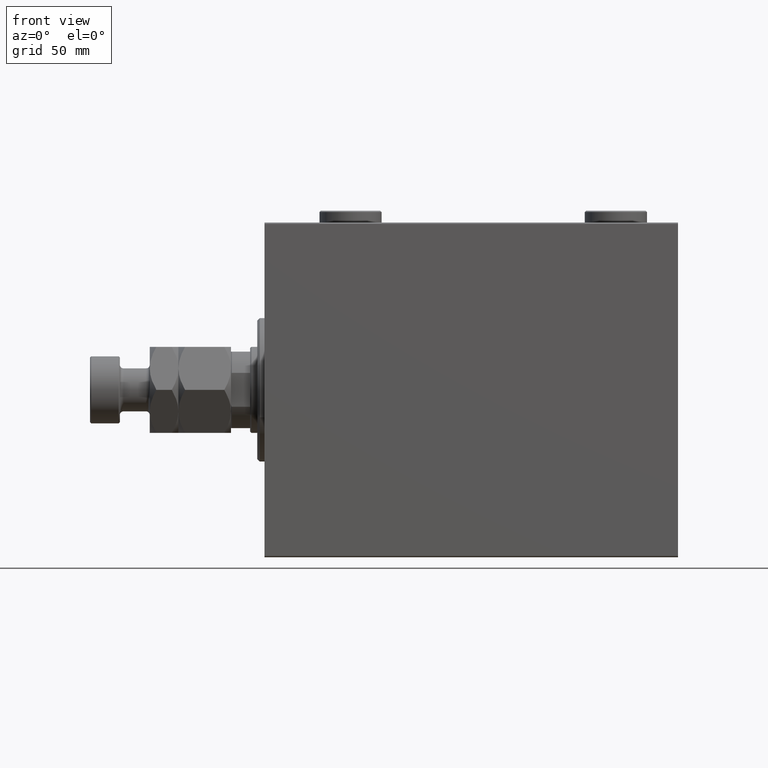
[diagram: clean part render]
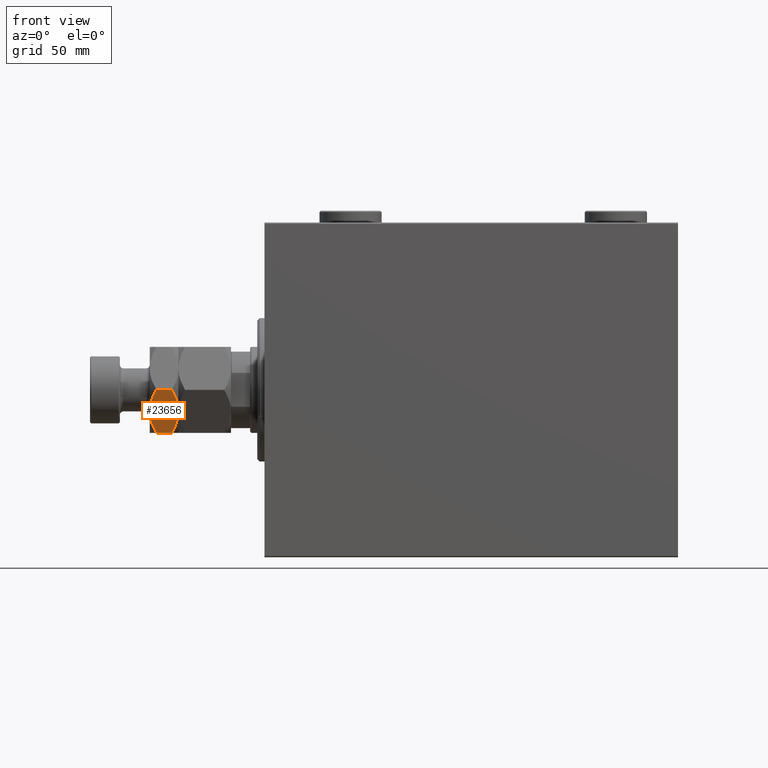
[diagram: same view with one face highlighted and labeled with its STEP entity id]
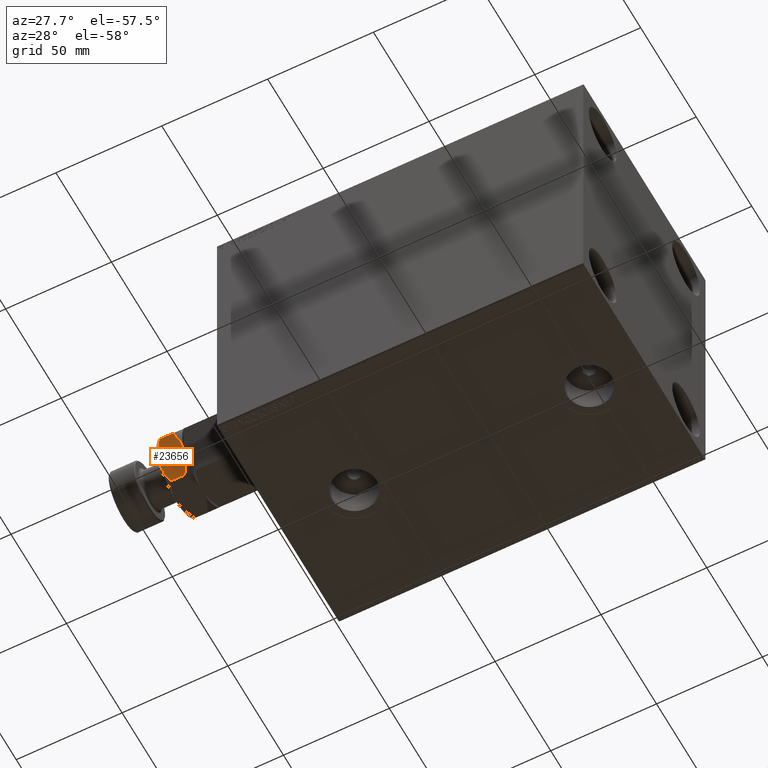
[diagram: same view with one face highlighted and labeled with its STEP entity id]
A machine part, front view. The second image highlights one B-rep face of the part: STEP entity #23656.
A second angle (auxiliary view) of the same face is appended — the face is thin or edge-on in the first view.
In plain terms, the highlighted planar face has unit normal (0, 0.866, 0.5).
Its self-contained STEP definition (entity closure, byte-faithful):
#1110 = EDGE_CURVE ( 'NONE', #1122, #21046, #31435, .T. ) ;
#1122 = VERTEX_POINT ( 'NONE', #23806 ) ;
#1219 = CARTESIAN_POINT ( 'NONE',  ( -8.605874323383764235, -15.81600583360882162, 22.00000000000000000 ) ) ;
#1338 = CARTESIAN_POINT ( 'NONE',  ( -12.10430252359947723, -13.79618737047370125, 22.27639590712157869 ) ) ;
#1570 = CARTESIAN_POINT ( 'NONE',  ( -17.99999999999999645, -10.39230484541326227, 24.78460969082651744 ) ) ;
#1721 = CARTESIAN_POINT ( 'NONE',  ( -17.99999999999999645, -10.39230484541326227, 31.21539030917348612 ) ) ;
#2059 = ORIENTED_EDGE ( 'NONE', *, *, #1110, .T. ) ;
#2715 = ORIENTED_EDGE ( 'NONE', *, *, #12549, .F. ) ;
#4102 = PLANE ( 'NONE',  #26502 ) ;
#4337 = DIRECTION ( 'NONE',  ( 0.5000000000000001110, 0.8660254037844385966, -0.000000000000000000 ) ) ;
#4357 = CARTESIAN_POINT ( 'NONE',  ( -12.14199022028319952, -13.77442836864821629, 33.65943689774473313 ) ) ;
#4550 = CARTESIAN_POINT ( 'NONE',  ( -5.097327296964719423, -17.84166640377631552, 22.53708555582900530 ) ) ;
#4561 = B_SPLINE_CURVE_WITH_KNOTS ( 'NONE', 3,
 ( #1721, #30286, #44096, #11969, #4357, #26461, #33387, #44782, #40984, #26238 ),
 .UNSPECIFIED., .F., .F.,
 ( 4, 2, 2, 2, 4 ),
 ( 2.544307986796311447E-07, 0.005386537354063073400, 0.008079678815695271604, 0.009426249546511368538, 0.01077282027732746547 ),
 .UNSPECIFIED. ) ;
#4698 = EDGE_CURVE ( 'NONE', #1122, #21920, #4561, .T. ) ;
#4789 = CARTESIAN_POINT ( 'NONE',  ( -5.858009779716796039, -17.40248616759157230, 22.34056310225527398 ) ) ;
#5495 = B_SPLINE_CURVE_WITH_KNOTS ( 'NONE', 3,
 ( #40604, #26097, #1338, #12525, #8253, #1570 ),
 .UNSPECIFIED., .F., .F.,
 ( 4, 2, 4 ),
 ( 0.01077282027732746894, 0.01612137750481873466, 0.02146993473231000038 ),
 .UNSPECIFIED. ) ;
#6068 = VECTOR ( 'NONE', #34746, 1000.000000000000000 ) ;
#8253 = CARTESIAN_POINT ( 'NONE',  ( -16.59030399953600821, -11.20619321075668218, 23.97072132548304779 ) ) ;
#9064 = CARTESIAN_POINT ( 'NONE',  ( -2.854601888853809832, -19.13650452186756823, 23.27738307788987271 ) ) ;
#10321 = CARTESIAN_POINT ( 'NONE',  ( -5.895697476400520110, -17.38072716576608912, 33.72360409287841065 ) ) ;
#11969 = CARTESIAN_POINT ( 'NONE',  ( -12.90267270303527525, -13.33524813246346952, 33.46291444417099115 ) ) ;
#12167 = CARTESIAN_POINT ( 'NONE',  ( -8.999999999999994671, -15.58845726811989252, 22.00000000000000000 ) ) ;
#12525 = CARTESIAN_POINT ( 'NONE',  ( -15.13928418966203004, -12.04393988858690179, 23.27257470150423302 ) ) ;
#12549 = EDGE_CURVE ( 'NONE', #25114, #42149, #44889, .T. ) ;
#15296 = DIRECTION ( 'NONE',  ( -0.8660254037844385966, 0.5000000000000001110, 0.000000000000000000 ) ) ;
#15321 = B_SPLINE_CURVE_WITH_KNOTS ( 'NONE', 3,
 ( #20078, #20554, #10321, #24103, #24821, #43583 ),
 .UNSPECIFIED., .F., .F.,
 ( 4, 2, 4 ),
 ( 0.01077282027732746547, 0.01612137750481873466, 0.02146993473231000385 ),
 .UNSPECIFIED. ) ;
#16099 = DIRECTION ( 'NONE',  ( -0.000000000000000000, -0.000000000000000000, -1.000000000000000000 ) ) ;
#17577 = CARTESIAN_POINT ( 'NONE',  ( -8.999999999999994671, -15.58845726811989252, 22.00000000000000000 ) ) ;
#17665 = ORIENTED_EDGE ( 'NONE', *, *, #46435, .F. ) ;
#18629 = CARTESIAN_POINT ( 'NONE',  ( -17.99999999999999645, -10.39230484541326227, 34.00000000000000000 ) ) ;
#19076 = CARTESIAN_POINT ( 'NONE',  ( -7.415748492146451376, -16.50312530264320898, 22.08694689011815271 ) ) ;
#19311 = CARTESIAN_POINT ( 'NONE',  ( -7.023280245922041587, -16.72971695024925509, 22.13872259909857831 ) ) ;
#20078 = CARTESIAN_POINT ( 'NONE',  ( -9.000000000000000000, -15.58845726811989074, 34.00000000000000000 ) ) ;
#20554 = CARTESIAN_POINT ( 'NONE',  ( -7.434539168300459799, -16.49227650070744033, 34.00000000000000000 ) ) ;
#20930 = VECTOR ( 'NONE', #16099, 1000.000000000000000 ) ;
#21046 = VERTEX_POINT ( 'NONE', #26253 ) ;
#21900 = EDGE_CURVE ( 'NONE', #42149, #21046, #5495, .T. ) ;
#21920 = VERTEX_POINT ( 'NONE', #31074 ) ;
#22826 = ORIENTED_EDGE ( 'NONE', *, *, #21900, .F. ) ;
#23656 = ADVANCED_FACE ( 'NONE', ( #34062 ), #4102, .F. ) ;
#23806 = CARTESIAN_POINT ( 'NONE',  ( -17.99999999999999645, -10.39230484541326227, 31.21539030917348612 ) ) ;
#24103 = CARTESIAN_POINT ( 'NONE',  ( -2.860715810337961518, -19.13297464765288325, 32.72742529849575277 ) ) ;
#24821 = CARTESIAN_POINT ( 'NONE',  ( -1.409696000463986243, -19.97072132548310108, 32.02927867451695221 ) ) ;
#25114 = VERTEX_POINT ( 'NONE', #33948 ) ;
#25215 = VERTEX_POINT ( 'NONE', #46983 ) ;
#25712 = ORIENTED_EDGE ( 'NONE', *, *, #46123, .F. ) ;
#26097 = CARTESIAN_POINT ( 'NONE',  ( -10.56546083169953398, -14.68463803553235358, 22.00000000000000711 ) ) ;
#26238 = CARTESIAN_POINT ( 'NONE',  ( -9.000000000000000000, -15.58845726811989074, 34.00000000000000000 ) ) ;
#26253 = CARTESIAN_POINT ( 'NONE',  ( -17.99999999999999645, -10.39230484541326227, 24.78460969082651744 ) ) ;
#26420 = CARTESIAN_POINT ( 'NONE',  ( -8.209538469370123437, -16.04483044561310123, 22.01733285647410199 ) ) ;
#26461 = CARTESIAN_POINT ( 'NONE',  ( -10.97671975407794953, -14.44719758599053705, 33.86127740090142879 ) ) ;
#26502 = AXIS2_PLACEMENT_3D ( 'NONE', #18629, #4337, #15296 ) ;
#26891 = CARTESIAN_POINT ( 'NONE',  ( 1.116285825713513451E-15, -20.78460969082652809, 24.78460969082652454 ) ) ;
#29521 = ORIENTED_EDGE ( 'NONE', *, *, #4698, .F. ) ;
#30286 = CARTESIAN_POINT ( 'NONE',  ( -16.58866960374794530, -11.20713682960488100, 32.03022229336509952 ) ) ;
#31074 = CARTESIAN_POINT ( 'NONE',  ( -9.000000000000000000, -15.58845726811989074, 34.00000000000000000 ) ) ;
#31435 = LINE ( 'NONE', #45927, #6068 ) ;
#33387 = CARTESIAN_POINT ( 'NONE',  ( -10.58425150785354418, -14.67378923359658138, 33.91305310988184374 ) ) ;
#33948 = CARTESIAN_POINT ( 'NONE',  ( 1.116285825713513451E-15, -20.78460969082652809, 24.78460969082652454 ) ) ;
#34062 = FACE_OUTER_BOUND ( 'NONE', #36063, .T. ) ;
#34746 = DIRECTION ( 'NONE',  ( -0.000000000000000000, -0.000000000000000000, -1.000000000000000000 ) ) ;
#36063 = EDGE_LOOP ( 'NONE', ( #2715, #17665, #25712, #29521, #2059, #22826 ) ) ;
#38196 = LINE ( 'NONE', #41531, #20930 ) ;
#40604 = CARTESIAN_POINT ( 'NONE',  ( -8.999999999999994671, -15.58845726811989252, 22.00000000000000000 ) ) ;
#40984 = CARTESIAN_POINT ( 'NONE',  ( -9.394125676616233989, -15.36090870263096875, 34.00000000000000711 ) ) ;
#41531 = CARTESIAN_POINT ( 'NONE',  ( 3.096890948757162212E-15, -20.78460969082652809, 34.00000000000000000 ) ) ;
#42149 = VERTEX_POINT ( 'NONE', #17577 ) ;
#43583 = CARTESIAN_POINT ( 'NONE',  ( 2.298595589355136900E-15, -20.78460969082652809, 31.21539030917348256 ) ) ;
#44096 = CARTESIAN_POINT ( 'NONE',  ( -15.14539811114618217, -12.04041001437222214, 32.72261692211013440 ) ) ;
#44782 = CARTESIAN_POINT ( 'NONE',  ( -9.790461530629873010, -15.13208409062669624, 33.98266714352592288 ) ) ;
#44889 = B_SPLINE_CURVE_WITH_KNOTS ( 'NONE', 3,
 ( #26891, #45208, #9064, #4550, #4789, #19311, #19076, #26420, #1219, #12167 ),
 .UNSPECIFIED., .F., .F.,
 ( 4, 2, 2, 2, 4 ),
 ( 2.544307986820631351E-07, 0.005386537354063076870, 0.008079678815695275074, 0.009426249546511372007, 0.01077282027732746894 ),
 .UNSPECIFIED. ) ;
#45208 = CARTESIAN_POINT ( 'NONE',  ( -1.411330396252044261, -19.96977770663490759, 23.96977770663490404 ) ) ;
#45927 = CARTESIAN_POINT ( 'NONE',  ( -17.99999999999999645, -10.39230484541326227, 34.00000000000000000 ) ) ;
#46123 = EDGE_CURVE ( 'NONE', #21920, #25215, #15321, .T. ) ;
#46435 = EDGE_CURVE ( 'NONE', #25215, #25114, #38196, .T. ) ;
#46983 = CARTESIAN_POINT ( 'NONE',  ( 2.298595589355136900E-15, -20.78460969082652809, 31.21539030917348256 ) ) ;